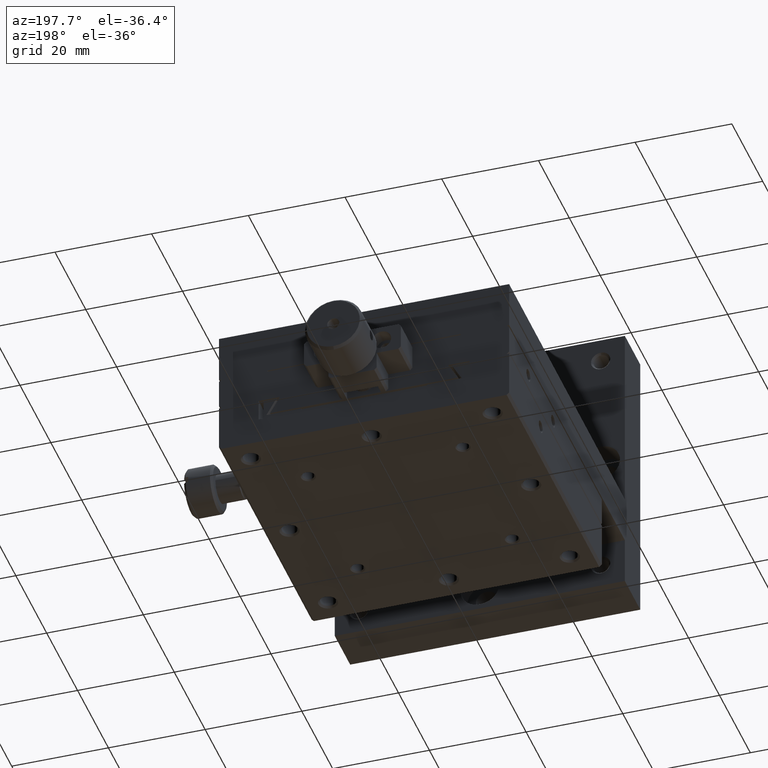
[diagram: clean part render]
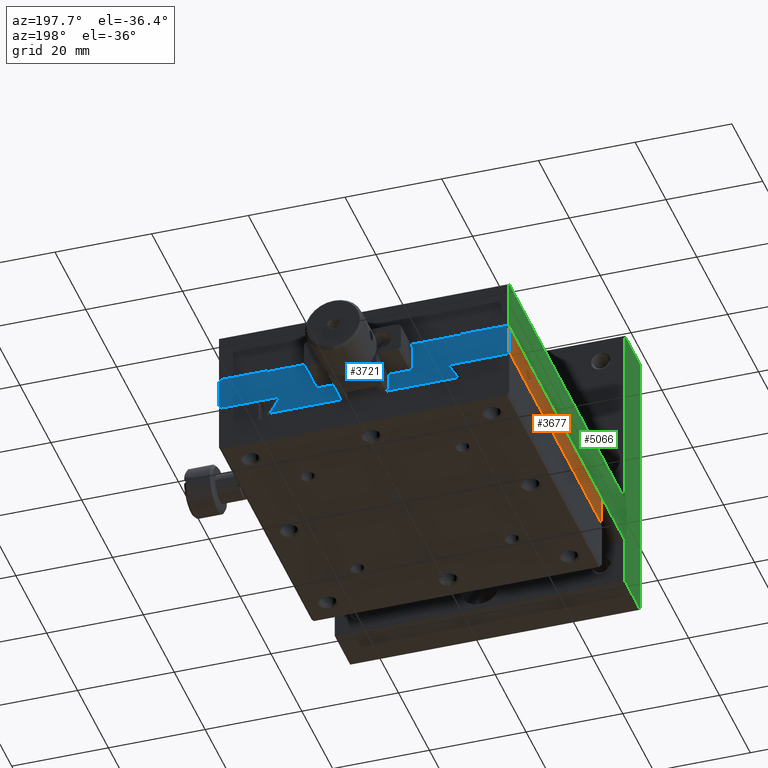
[diagram: same view with three faces highlighted in distinct colors, each labeled with its STEP entity id]
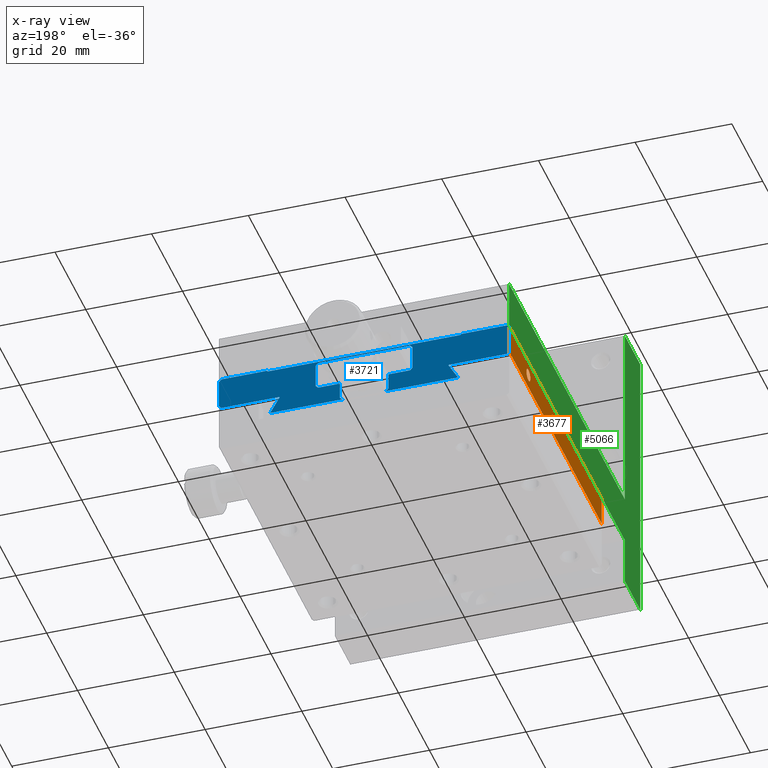
[diagram: x-ray of the same camera — body ghosted, the three highlighted faces saturated]
A machine part, auxiliary view with three faces highlighted in distinct colors.
The next image is the same camera in x-ray (body ghosted, the three faces saturated) — at least one of them is partly hidden behind the body in this view.
Their STEP definitions:

[orange] entity #3677 — the highlighted planar face has unit normal (1, 0, 0).
#59 = LINE ( 'NONE', #2295, #3306 ) ;
#212 = VECTOR ( 'NONE', #1470, 1000.000000000000000 ) ;
#346 = LINE ( 'NONE', #1441, #5934 ) ;
#366 = VERTEX_POINT ( 'NONE', #1045 ) ;
#917 = ORIENTED_EDGE ( 'NONE', *, *, #1976, .T. ) ;
#1016 = CARTESIAN_POINT ( 'NONE',  ( -30.00000000000000000, 84.99999999999998579, -6.500000000000009770 ) ) ;
#1045 = CARTESIAN_POINT ( 'NONE',  ( -30.00000000000000000, 25.00000000000000000, -6.500000000000009770 ) ) ;
#1171 = FACE_OUTER_BOUND ( 'NONE', #4547, .T. ) ;
#1278 = DIRECTION ( 'NONE',  ( 0.000000000000000000, 0.000000000000000000, -1.000000000000000000 ) ) ;
#1363 = DIRECTION ( 'NONE',  ( -1.000000000000000000, 4.592434781932380299E-17, 0.000000000000000000 ) ) ;
#1378 = DIRECTION ( 'NONE',  ( 0.000000000000000000, 0.000000000000000000, 1.000000000000000000 ) ) ;
#1441 = CARTESIAN_POINT ( 'NONE',  ( -30.00000000000000000, 25.00000000000000000, 0.000000000000000000 ) ) ;
#1470 = DIRECTION ( 'NONE',  ( 0.000000000000000000, -0.000000000000000000, 1.000000000000000000 ) ) ;
#1508 = LINE ( 'NONE', #2700, #212 ) ;
#1637 = CARTESIAN_POINT ( 'NONE',  ( -30.00000000000000000, 55.25000000000000000, -3.500000000000000000 ) ) ;
#1857 = ORIENTED_EDGE ( 'NONE', *, *, #3238, .F. ) ;
#1925 = EDGE_CURVE ( 'NONE', #4068, #4279, #1508, .T. ) ;
#1976 = EDGE_CURVE ( 'NONE', #366, #6470, #346, .T. ) ;
#2270 = CARTESIAN_POINT ( 'NONE',  ( -30.00000000000000000, 25.00000000000000000, -0.5000000000000140998 ) ) ;
#2290 = CARTESIAN_POINT ( 'NONE',  ( -30.00000000000000000, 84.99999999999998579, -0.5000000000000143219 ) ) ;
#2295 = CARTESIAN_POINT ( 'NONE',  ( -30.00000000000000000, 84.99999999999998579, -6.500000000000009770 ) ) ;
#2362 = AXIS2_PLACEMENT_3D ( 'NONE', #4276, #1363, #6360 ) ;
#2480 = ORIENTED_EDGE ( 'NONE', *, *, #4710, .F. ) ;
#2493 = CARTESIAN_POINT ( 'NONE',  ( -30.00000000000000000, 84.99999999999998579, -0.5000000000000140998 ) ) ;
#2607 = CARTESIAN_POINT ( 'NONE',  ( -30.00000000000000000, 72.50000000000001421, -3.500000000000000000 ) ) ;
#2700 = CARTESIAN_POINT ( 'NONE',  ( -30.00000000000000000, 84.99999999999998579, 0.000000000000000000 ) ) ;
#2742 = ORIENTED_EDGE ( 'NONE', *, *, #6311, .F. ) ;
#2782 = VERTEX_POINT ( 'NONE', #5082 ) ;
#3238 = EDGE_CURVE ( 'NONE', #4279, #6470, #3936, .T. ) ;
#3306 = VECTOR ( 'NONE', #4024, 1000.000000000000000 ) ;
#3428 = FACE_BOUND ( 'NONE', #4550, .T. ) ;
#3455 = EDGE_LOOP ( 'NONE', ( #2480 ) ) ;
#3677 = ADVANCED_FACE ( 'NONE', ( #1171, #3428, #5642 ), #3817, .F. ) ;
#3739 = DIRECTION ( 'NONE',  ( -1.000000000000000000, 0.000000000000000000, 0.000000000000000000 ) ) ;
#3817 = PLANE ( 'NONE',  #4447 ) ;
#3936 = LINE ( 'NONE', #2290, #5480 ) ;
#4024 = DIRECTION ( 'NONE',  ( -0.000000000000000000, 1.000000000000000000, 0.000000000000000000 ) ) ;
#4068 = VERTEX_POINT ( 'NONE', #4909 ) ;
#4075 = DIRECTION ( 'NONE',  ( 1.000000000000000000, 0.000000000000000000, 0.000000000000000000 ) ) ;
#4156 = ORIENTED_EDGE ( 'NONE', *, *, #1925, .F. ) ;
#4199 = DIRECTION ( 'NONE',  ( 0.000000000000000000, -0.000000000000000000, 1.000000000000000000 ) ) ;
#4276 = CARTESIAN_POINT ( 'NONE',  ( -30.00000000000000000, 56.50000000000000000, -3.500000000000000000 ) ) ;
#4279 = VERTEX_POINT ( 'NONE', #2493 ) ;
#4447 = AXIS2_PLACEMENT_3D ( 'NONE', #1016, #4075, #1278 ) ;
#4547 = EDGE_LOOP ( 'NONE', ( #1857, #4156, #6379, #917 ) ) ;
#4550 = EDGE_LOOP ( 'NONE', ( #2742 ) ) ;
#4629 = EDGE_CURVE ( 'NONE', #366, #4068, #59, .T. ) ;
#4710 = EDGE_CURVE ( 'NONE', #5525, #5525, #5275, .T. ) ;
#4909 = CARTESIAN_POINT ( 'NONE',  ( -30.00000000000000000, 84.99999999999998579, -6.500000000000009770 ) ) ;
#4949 = AXIS2_PLACEMENT_3D ( 'NONE', #2607, #3739, #1378 ) ;
#5074 = DIRECTION ( 'NONE',  ( 0.000000000000000000, -1.000000000000000000, -0.000000000000000000 ) ) ;
#5082 = CARTESIAN_POINT ( 'NONE',  ( -30.00000000000000000, 72.50000000000001421, -2.250000000000000444 ) ) ;
#5181 = CIRCLE ( 'NONE', #4949, 1.249999999999999778 ) ;
#5275 = CIRCLE ( 'NONE', #2362, 1.250000000000001110 ) ;
#5480 = VECTOR ( 'NONE', #5074, 1000.000000000000000 ) ;
#5525 = VERTEX_POINT ( 'NONE', #1637 ) ;
#5642 = FACE_BOUND ( 'NONE', #3455, .T. ) ;
#5934 = VECTOR ( 'NONE', #4199, 1000.000000000000000 ) ;
#6311 = EDGE_CURVE ( 'NONE', #2782, #2782, #5181, .T. ) ;
#6360 = DIRECTION ( 'NONE',  ( 0.000000000000000000, -1.000000000000000000, 0.000000000000000000 ) ) ;
#6379 = ORIENTED_EDGE ( 'NONE', *, *, #4629, .F. ) ;
#6470 = VERTEX_POINT ( 'NONE', #2270 ) ;

[blue] entity #3721 — the highlighted planar face has unit normal (0, 1, 0).
#89 = VECTOR ( 'NONE', #4937, 1000.000000000000000 ) ;
#97 = LINE ( 'NONE', #2332, #3603 ) ;
#117 = VECTOR ( 'NONE', #3249, 1000.000000000000000 ) ;
#173 = EDGE_CURVE ( 'NONE', #6103, #5886, #6714, .T. ) ;
#212 = VECTOR ( 'NONE', #1470, 1000.000000000000000 ) ;
#266 = VERTEX_POINT ( 'NONE', #5322 ) ;
#388 = CARTESIAN_POINT ( 'NONE',  ( -20.00000000000000000, 84.99999999999998579, 0.000000000000000000 ) ) ;
#391 = CARTESIAN_POINT ( 'NONE',  ( -10.00000000000000000, 84.99999999999998579, -1.000000000000000000 ) ) ;
#403 = VERTEX_POINT ( 'NONE', #2127 ) ;
#436 = CARTESIAN_POINT ( 'NONE',  ( 20.00000000000000000, 84.99999999999998579, -0.2000000000000169975 ) ) ;
#516 = CARTESIAN_POINT ( 'NONE',  ( 10.00000000000000000, 84.99999999999998579, -6.000000000000000000 ) ) ;
#517 = ORIENTED_EDGE ( 'NONE', *, *, #6037, .T. ) ;
#547 = VECTOR ( 'NONE', #3228, 1000.000000000000000 ) ;
#554 = CARTESIAN_POINT ( 'NONE',  ( 5.000000000000000000, 84.99999999999998579, -9.999999999999989342 ) ) ;
#744 = EDGE_CURVE ( 'NONE', #3240, #1576, #5499, .T. ) ;
#760 = CARTESIAN_POINT ( 'NONE',  ( 9.500000000000000000, 84.99999999999998579, -0.5000000000000000000 ) ) ;
#766 = LINE ( 'NONE', #5720, #3283 ) ;
#774 = DIRECTION ( 'NONE',  ( 1.000000000000000000, 0.000000000000000000, -0.000000000000000000 ) ) ;
#855 = EDGE_CURVE ( 'NONE', #2524, #1131, #1284, .T. ) ;
#886 = EDGE_CURVE ( 'NONE', #1503, #4741, #5178, .T. ) ;
#887 = VECTOR ( 'NONE', #5536, 1000.000000000000000 ) ;
#904 = CARTESIAN_POINT ( 'NONE',  ( -29.50000000000000000, 84.99999999999998579, -7.000000000000010658 ) ) ;
#910 = VECTOR ( 'NONE', #5280, 1000.000000000000000 ) ;
#982 = EDGE_CURVE ( 'NONE', #3386, #3233, #4264, .T. ) ;
#1009 = ORIENTED_EDGE ( 'NONE', *, *, #1925, .T. ) ;
#1042 = LINE ( 'NONE', #2194, #2230 ) ;
#1131 = VERTEX_POINT ( 'NONE', #1572 ) ;
#1206 = CARTESIAN_POINT ( 'NONE',  ( 5.000000000000000000, 84.99999999999998579, -9.999999999999989342 ) ) ;
#1224 = CARTESIAN_POINT ( 'NONE',  ( 4.499999999999972466, 84.99999999999998579, -10.49999999999999822 ) ) ;
#1230 = CARTESIAN_POINT ( 'NONE',  ( 0.000000000000000000, 84.99999999999998579, -0.5000000000000000000 ) ) ;
#1251 = DIRECTION ( 'NONE',  ( -1.000000000000000000, -0.000000000000000000, 0.000000000000000000 ) ) ;
#1284 = LINE ( 'NONE', #2470, #4651 ) ;
#1332 = CARTESIAN_POINT ( 'NONE',  ( -17.42271428571429581, 84.99999999999998579, -7.000000000000011546 ) ) ;
#1356 = VERTEX_POINT ( 'NONE', #1206 ) ;
#1370 = CARTESIAN_POINT ( 'NONE',  ( -5.000000000000000000, 84.99999999999998579, 0.000000000000000000 ) ) ;
#1380 = EDGE_CURVE ( 'NONE', #5919, #6103, #6942, .T. ) ;
#1401 = VECTOR ( 'NONE', #5243, 1000.000000000000000 ) ;
#1426 = EDGE_CURVE ( 'NONE', #4279, #3501, #5300, .T. ) ;
#1440 = DIRECTION ( 'NONE',  ( -1.000000000000000000, -0.000000000000000000, 0.000000000000000000 ) ) ;
#1463 = CARTESIAN_POINT ( 'NONE',  ( -9.500000000000000000, 84.99999999999998579, -0.5000000000000001110 ) ) ;
#1465 = EDGE_CURVE ( 'NONE', #6212, #4732, #5474, .T. ) ;
#1470 = DIRECTION ( 'NONE',  ( 0.000000000000000000, -0.000000000000000000, 1.000000000000000000 ) ) ;
#1503 = VERTEX_POINT ( 'NONE', #5952 ) ;
#1508 = LINE ( 'NONE', #2700, #212 ) ;
#1569 = EDGE_CURVE ( 'NONE', #2429, #266, #3697, .T. ) ;
#1572 = CARTESIAN_POINT ( 'NONE',  ( 30.00000000000000000, 84.99999999999998579, -6.500000000000030198 ) ) ;
#1573 = CARTESIAN_POINT ( 'NONE',  ( 20.00000000000000000, 84.99999999999998579, -1.420500002347057884E-14 ) ) ;
#1576 = VERTEX_POINT ( 'NONE', #4833 ) ;
#1632 = DIRECTION ( 'NONE',  ( 1.000000000000000000, 0.000000000000000000, -0.000000000000000000 ) ) ;
#1694 = EDGE_CURVE ( 'NONE', #6281, #4068, #97, .T. ) ;
#1710 = VECTOR ( 'NONE', #4762, 1000.000000000000000 ) ;
#1771 = LINE ( 'NONE', #554, #5605 ) ;
#1787 = VECTOR ( 'NONE', #2825, 1000.000000000000000 ) ;
#1810 = CARTESIAN_POINT ( 'NONE',  ( 10.00000000000000000, 84.99999999999998579, -0.9999999999999997780 ) ) ;
#1910 = FACE_OUTER_BOUND ( 'NONE', #3970, .T. ) ;
#1915 = CARTESIAN_POINT ( 'NONE',  ( -10.00000000000000000, 84.99999999999998579, -1.000000000000000000 ) ) ;
#1924 = CARTESIAN_POINT ( 'NONE',  ( 9.500000000000000000, 84.99999999999998579, -0.5000000000000000000 ) ) ;
#1925 = EDGE_CURVE ( 'NONE', #4068, #4279, #1508, .T. ) ;
#1940 = ORIENTED_EDGE ( 'NONE', *, *, #7189, .T. ) ;
#1982 = CARTESIAN_POINT ( 'NONE',  ( 29.50000000000000355, 84.99999999999998579, -1.421085471520200056E-14 ) ) ;
#2014 = EDGE_CURVE ( 'NONE', #1131, #5557, #4275, .T. ) ;
#2020 = VECTOR ( 'NONE', #2167, 1000.000000000000000 ) ;
#2099 = ORIENTED_EDGE ( 'NONE', *, *, #173, .T. ) ;
#2127 = CARTESIAN_POINT ( 'NONE',  ( 20.00000000000000000, 84.99999999999998579, -0.2000000000000169975 ) ) ;
#2167 = DIRECTION ( 'NONE',  ( -0.000000000000000000, -0.000000000000000000, 1.000000000000000000 ) ) ;
#2194 = CARTESIAN_POINT ( 'NONE',  ( 0.000000000000000000, 84.99999999999998579, -6.500000000000000888 ) ) ;
#2230 = VECTOR ( 'NONE', #1632, 1000.000000000000000 ) ;
#2260 = VECTOR ( 'NONE', #4287, 1000.000000000000000 ) ;
#2322 = EDGE_CURVE ( 'NONE', #4766, #6281, #6523, .T. ) ;
#2332 = CARTESIAN_POINT ( 'NONE',  ( -29.50000000000000355, 84.99999999999998579, -7.000000000000009770 ) ) ;
#2343 = DIRECTION ( 'NONE',  ( -1.000000000000000000, -0.000000000000000000, 0.000000000000000000 ) ) ;
#2399 = CARTESIAN_POINT ( 'NONE',  ( 0.000000000000000000, 84.99999999999998579, -10.50000000000000000 ) ) ;
#2429 = VERTEX_POINT ( 'NONE', #1573 ) ;
#2446 = CARTESIAN_POINT ( 'NONE',  ( 10.00000000000000000, 84.99999999999998579, 0.000000000000000000 ) ) ;
#2470 = CARTESIAN_POINT ( 'NONE',  ( 30.00000000000000000, 84.99999999999998579, 0.000000000000000000 ) ) ;
#2493 = CARTESIAN_POINT ( 'NONE',  ( -30.00000000000000000, 84.99999999999998579, -0.5000000000000140998 ) ) ;
#2524 = VERTEX_POINT ( 'NONE', #3534 ) ;
#2525 = ORIENTED_EDGE ( 'NONE', *, *, #4721, .T. ) ;
#2541 = DIRECTION ( 'NONE',  ( -0.7071067811865480168, 0.000000000000000000, -0.7071067811865470176 ) ) ;
#2631 = CARTESIAN_POINT ( 'NONE',  ( -9.500000000000000000, 84.99999999999998579, -6.500000000000000888 ) ) ;
#2667 = VECTOR ( 'NONE', #2876, 1000.000000000000000 ) ;
#2675 = CARTESIAN_POINT ( 'NONE',  ( 5.000000000000000000, 84.99999999999998579, -6.500000000000000888 ) ) ;
#2700 = CARTESIAN_POINT ( 'NONE',  ( -30.00000000000000000, 84.99999999999998579, 0.000000000000000000 ) ) ;
#2723 = ORIENTED_EDGE ( 'NONE', *, *, #3424, .T. ) ;
#2726 = CARTESIAN_POINT ( 'NONE',  ( -5.000000000000000000, 84.99999999999998579, -6.500000000000000888 ) ) ;
#2756 = LINE ( 'NONE', #4976, #1787 ) ;
#2796 = VECTOR ( 'NONE', #3691, 1000.000000000000000 ) ;
#2825 = DIRECTION ( 'NONE',  ( -1.000000000000000000, -0.000000000000000000, 0.000000000000000000 ) ) ;
#2859 = LINE ( 'NONE', #6169, #5504 ) ;
#2876 = DIRECTION ( 'NONE',  ( 0.7071067811865450192, -0.000000000000000000, 0.7071067811865500152 ) ) ;
#2884 = CARTESIAN_POINT ( 'NONE',  ( 29.50000000000000355, 84.99999999999998579, -7.000000000000030198 ) ) ;
#2942 = LINE ( 'NONE', #1230, #4110 ) ;
#2959 = LINE ( 'NONE', #760, #1401 ) ;
#3039 = LINE ( 'NONE', #6499, #7146 ) ;
#3069 = DIRECTION ( 'NONE',  ( -0.000000000000000000, 0.000000000000000000, -1.000000000000000000 ) ) ;
#3090 = CARTESIAN_POINT ( 'NONE',  ( -20.00000000000000000, 84.99999999999998579, -1.420890315129152665E-14 ) ) ;
#3201 = ORIENTED_EDGE ( 'NONE', *, *, #6210, .T. ) ;
#3207 = EDGE_CURVE ( 'NONE', #4548, #1356, #1771, .T. ) ;
#3211 = VECTOR ( 'NONE', #3670, 1000.000000000000000 ) ;
#3228 = DIRECTION ( 'NONE',  ( -0.000000000000000000, 0.000000000000000000, -1.000000000000000000 ) ) ;
#3233 = VERTEX_POINT ( 'NONE', #391 ) ;
#3240 = VERTEX_POINT ( 'NONE', #2675 ) ;
#3249 = DIRECTION ( 'NONE',  ( 0.000000000000000000, -0.000000000000000000, 1.000000000000000000 ) ) ;
#3283 = VECTOR ( 'NONE', #3069, 1000.000000000000000 ) ;
#3296 = EDGE_CURVE ( 'NONE', #3233, #1503, #766, .T. ) ;
#3340 = VERTEX_POINT ( 'NONE', #1810 ) ;
#3370 = EDGE_CURVE ( 'NONE', #6222, #4766, #4639, .T. ) ;
#3386 = VERTEX_POINT ( 'NONE', #1463 ) ;
#3424 = EDGE_CURVE ( 'NONE', #1356, #3240, #5972, .T. ) ;
#3458 = LINE ( 'NONE', #4735, #2260 ) ;
#3501 = VERTEX_POINT ( 'NONE', #7108 ) ;
#3503 = DIRECTION ( 'NONE',  ( -0.000000000000000000, 0.000000000000000000, -1.000000000000000000 ) ) ;
#3515 = DIRECTION ( 'NONE',  ( 0.000000000000000000, -0.000000000000000000, 1.000000000000000000 ) ) ;
#3534 = CARTESIAN_POINT ( 'NONE',  ( 30.00000000000000000, 84.99999999999998579, -0.5000000000000139888 ) ) ;
#3556 = ORIENTED_EDGE ( 'NONE', *, *, #3207, .T. ) ;
#3581 = ORIENTED_EDGE ( 'NONE', *, *, #855, .T. ) ;
#3603 = VECTOR ( 'NONE', #6718, 1000.000000000000114 ) ;
#3646 = CARTESIAN_POINT ( 'NONE',  ( 0.000000000000000000, 84.99999999999998579, -7.000000000000009770 ) ) ;
#3670 = DIRECTION ( 'NONE',  ( 0.7071067811865450192, -0.000000000000000000, -0.7071067811865500152 ) ) ;
#3691 = DIRECTION ( 'NONE',  ( -0.7071067811865450192, -0.000000000000000000, -0.7071067811865500152 ) ) ;
#3697 = LINE ( 'NONE', #4281, #89 ) ;
#3701 = ORIENTED_EDGE ( 'NONE', *, *, #3370, .T. ) ;
#3721 = ADVANCED_FACE ( 'NONE', ( #1910 ), #4632, .T. ) ;
#3762 = VECTOR ( 'NONE', #3515, 1000.000000000000000 ) ;
#3827 = VECTOR ( 'NONE', #4052, 1000.000000000000000 ) ;
#3829 = ORIENTED_EDGE ( 'NONE', *, *, #4568, .T. ) ;
#3905 = ORIENTED_EDGE ( 'NONE', *, *, #1465, .T. ) ;
#3932 = CARTESIAN_POINT ( 'NONE',  ( 0.000000000000000000, 84.99999999999998579, -6.500000000000000888 ) ) ;
#3941 = EDGE_CURVE ( 'NONE', #4741, #5919, #1042, .T. ) ;
#3964 = LINE ( 'NONE', #436, #2020 ) ;
#3970 = EDGE_LOOP ( 'NONE', ( #5193, #6176, #2099, #6706, #3701, #5098, #6539, #1009, #6324, #2525, #3905, #3201, #517, #5609, #6849, #3581, #5658, #1940, #4872, #4174, #3556, #2723, #6939, #5392, #3829, #5949, #6518, #5588, #6564, #5975 ) ) ;
#4017 = DIRECTION ( 'NONE',  ( 0.7071067811865470176, 0.000000000000000000, 0.7071067811865480168 ) ) ;
#4052 = DIRECTION ( 'NONE',  ( 0.7071067811865470176, 0.000000000000000000, -0.7071067811865480168 ) ) ;
#4068 = VERTEX_POINT ( 'NONE', #4909 ) ;
#4110 = VECTOR ( 'NONE', #2343, 1000.000000000000000 ) ;
#4113 = DIRECTION ( 'NONE',  ( 0.000000000000000000, 1.000000000000000000, 0.000000000000000000 ) ) ;
#4121 = DIRECTION ( 'NONE',  ( 0.5000508562094885256, 0.000000000000000000, 0.8659960399471566816 ) ) ;
#4157 = EDGE_CURVE ( 'NONE', #7132, #3386, #2942, .T. ) ;
#4169 = CARTESIAN_POINT ( 'NONE',  ( -30.00000000000000000, 84.99999999999998579, -0.5000000000000139888 ) ) ;
#4174 = ORIENTED_EDGE ( 'NONE', *, *, #5004, .T. ) ;
#4178 = LINE ( 'NONE', #1982, #3211 ) ;
#4264 = LINE ( 'NONE', #1915, #5223 ) ;
#4275 = LINE ( 'NONE', #4893, #2796 ) ;
#4279 = VERTEX_POINT ( 'NONE', #2493 ) ;
#4281 = CARTESIAN_POINT ( 'NONE',  ( 0.000000000000000000, 84.99999999999998579, -1.420304845956010177E-14 ) ) ;
#4287 = DIRECTION ( 'NONE',  ( 1.000000000000000000, -0.000000000000000000, 0.000000000000000000 ) ) ;
#4326 = LINE ( 'NONE', #5814, #6351 ) ;
#4548 = VERTEX_POINT ( 'NONE', #1224 ) ;
#4568 = EDGE_CURVE ( 'NONE', #4814, #3340, #6831, .T. ) ;
#4602 = LINE ( 'NONE', #2399, #5746 ) ;
#4623 = EDGE_CURVE ( 'NONE', #7094, #4906, #2859, .T. ) ;
#4632 = PLANE ( 'NONE',  #4689 ) ;
#4639 = LINE ( 'NONE', #6313, #6549 ) ;
#4646 = DIRECTION ( 'NONE',  ( 0.5000508562094906351, 0.000000000000000000, -0.8659960399471554604 ) ) ;
#4651 = VECTOR ( 'NONE', #3503, 1000.000000000000000 ) ;
#4689 = AXIS2_PLACEMENT_3D ( 'NONE', #6815, #4113, #6848 ) ;
#4717 = CARTESIAN_POINT ( 'NONE',  ( 17.42271428571429936, 84.99999999999998579, -7.000000000000030198 ) ) ;
#4721 = EDGE_CURVE ( 'NONE', #3501, #6212, #3039, .T. ) ;
#4732 = VERTEX_POINT ( 'NONE', #4790 ) ;
#4735 = CARTESIAN_POINT ( 'NONE',  ( -20.00000000000000000, 84.99999999999998579, -0.2000000000000169975 ) ) ;
#4741 = VERTEX_POINT ( 'NONE', #2631 ) ;
#4762 = DIRECTION ( 'NONE',  ( -0.000000000000000000, 0.000000000000000000, -1.000000000000000000 ) ) ;
#4766 = VERTEX_POINT ( 'NONE', #1332 ) ;
#4790 = CARTESIAN_POINT ( 'NONE',  ( -20.00000000000000000, 84.99999999999998579, -0.2000000000000169975 ) ) ;
#4814 = VERTEX_POINT ( 'NONE', #516 ) ;
#4833 = CARTESIAN_POINT ( 'NONE',  ( 9.500000000000001776, 84.99999999999998579, -6.500000000000000888 ) ) ;
#4872 = ORIENTED_EDGE ( 'NONE', *, *, #4623, .T. ) ;
#4893 = CARTESIAN_POINT ( 'NONE',  ( 30.00000000000000000, 84.99999999999998579, -6.500000000000030198 ) ) ;
#4906 = VERTEX_POINT ( 'NONE', #6015 ) ;
#4909 = CARTESIAN_POINT ( 'NONE',  ( -30.00000000000000000, 84.99999999999998579, -6.500000000000009770 ) ) ;
#4937 = DIRECTION ( 'NONE',  ( 1.000000000000000000, 0.000000000000000000, -0.000000000000000000 ) ) ;
#4976 = CARTESIAN_POINT ( 'NONE',  ( 0.000000000000000000, 84.99999999999998579, -10.50000000000000000 ) ) ;
#5004 = EDGE_CURVE ( 'NONE', #4906, #4548, #4602, .T. ) ;
#5098 = ORIENTED_EDGE ( 'NONE', *, *, #2322, .T. ) ;
#5178 = LINE ( 'NONE', #5756, #7087 ) ;
#5193 = ORIENTED_EDGE ( 'NONE', *, *, #3941, .T. ) ;
#5223 = VECTOR ( 'NONE', #2541, 1000.000000000000000 ) ;
#5243 = DIRECTION ( 'NONE',  ( -0.7071067811865480168, 0.000000000000000000, 0.7071067811865470176 ) ) ;
#5253 = LINE ( 'NONE', #6357, #6936 ) ;
#5280 = DIRECTION ( 'NONE',  ( -1.000000000000000000, -0.000000000000000000, 0.000000000000000000 ) ) ;
#5300 = LINE ( 'NONE', #4169, #2667 ) ;
#5322 = CARTESIAN_POINT ( 'NONE',  ( 29.50000000000000000, 84.99999999999998579, -1.323470684173183271E-14 ) ) ;
#5392 = ORIENTED_EDGE ( 'NONE', *, *, #6231, .T. ) ;
#5474 = LINE ( 'NONE', #388, #547 ) ;
#5499 = LINE ( 'NONE', #3932, #887 ) ;
#5504 = VECTOR ( 'NONE', #4646, 1000.000000000000114 ) ;
#5536 = DIRECTION ( 'NONE',  ( 1.000000000000000000, 0.000000000000000000, -0.000000000000000000 ) ) ;
#5557 = VERTEX_POINT ( 'NONE', #2884 ) ;
#5588 = ORIENTED_EDGE ( 'NONE', *, *, #982, .T. ) ;
#5605 = VECTOR ( 'NONE', #4017, 1000.000000000000000 ) ;
#5609 = ORIENTED_EDGE ( 'NONE', *, *, #1569, .T. ) ;
#5658 = ORIENTED_EDGE ( 'NONE', *, *, #2014, .T. ) ;
#5720 = CARTESIAN_POINT ( 'NONE',  ( -10.00000000000000000, 84.99999999999998579, 0.000000000000000000 ) ) ;
#5729 = EDGE_CURVE ( 'NONE', #3340, #7132, #2959, .T. ) ;
#5746 = VECTOR ( 'NONE', #1251, 1000.000000000000000 ) ;
#5756 = CARTESIAN_POINT ( 'NONE',  ( -9.500000000000000000, 84.99999999999998579, -6.500000000000000888 ) ) ;
#5814 = CARTESIAN_POINT ( 'NONE',  ( 10.00000000000000000, 84.99999999999998579, -6.000000000000000000 ) ) ;
#5886 = VERTEX_POINT ( 'NONE', #6560 ) ;
#5889 = DIRECTION ( 'NONE',  ( 0.7071067811865474617, 0.000000000000000000, 0.7071067811865474617 ) ) ;
#5919 = VERTEX_POINT ( 'NONE', #2726 ) ;
#5949 = ORIENTED_EDGE ( 'NONE', *, *, #5729, .T. ) ;
#5952 = CARTESIAN_POINT ( 'NONE',  ( -9.999999999999998224, 84.99999999999998579, -6.000000000000000000 ) ) ;
#5972 = LINE ( 'NONE', #6457, #117 ) ;
#5975 = ORIENTED_EDGE ( 'NONE', *, *, #886, .T. ) ;
#6015 = CARTESIAN_POINT ( 'NONE',  ( 19.44371428571430016, 84.99999999999998579, -10.50000000000000178 ) ) ;
#6037 = EDGE_CURVE ( 'NONE', #403, #2429, #3964, .T. ) ;
#6103 = VERTEX_POINT ( 'NONE', #6810 ) ;
#6169 = CARTESIAN_POINT ( 'NONE',  ( 17.42271428571429936, 84.99999999999998579, -7.000000000000030198 ) ) ;
#6176 = ORIENTED_EDGE ( 'NONE', *, *, #1380, .T. ) ;
#6210 = EDGE_CURVE ( 'NONE', #4732, #403, #3458, .T. ) ;
#6212 = VERTEX_POINT ( 'NONE', #3090 ) ;
#6222 = VERTEX_POINT ( 'NONE', #7058 ) ;
#6231 = EDGE_CURVE ( 'NONE', #1576, #4814, #4326, .T. ) ;
#6269 = EDGE_CURVE ( 'NONE', #266, #2524, #4178, .T. ) ;
#6281 = VERTEX_POINT ( 'NONE', #904 ) ;
#6308 = DIRECTION ( 'NONE',  ( 0.7071067811865474617, 0.000000000000000000, -0.7071067811865474617 ) ) ;
#6313 = CARTESIAN_POINT ( 'NONE',  ( -19.44371428571430016, 84.99999999999998579, -10.50000000000000000 ) ) ;
#6324 = ORIENTED_EDGE ( 'NONE', *, *, #1426, .T. ) ;
#6351 = VECTOR ( 'NONE', #5889, 1000.000000000000114 ) ;
#6357 = CARTESIAN_POINT ( 'NONE',  ( 0.000000000000000000, 84.99999999999998579, -7.000000000000030198 ) ) ;
#6366 = EDGE_CURVE ( 'NONE', #5886, #6222, #2756, .T. ) ;
#6457 = CARTESIAN_POINT ( 'NONE',  ( 5.000000000000000000, 84.99999999999998579, 0.000000000000000000 ) ) ;
#6499 = CARTESIAN_POINT ( 'NONE',  ( 0.000000000000000000, 84.99999999999998579, -1.420304845956010177E-14 ) ) ;
#6518 = ORIENTED_EDGE ( 'NONE', *, *, #4157, .T. ) ;
#6523 = LINE ( 'NONE', #3646, #910 ) ;
#6539 = ORIENTED_EDGE ( 'NONE', *, *, #1694, .T. ) ;
#6549 = VECTOR ( 'NONE', #4121, 1000.000000000000227 ) ;
#6560 = CARTESIAN_POINT ( 'NONE',  ( -4.499999999999984901, 84.99999999999998579, -10.50000000000000888 ) ) ;
#6564 = ORIENTED_EDGE ( 'NONE', *, *, #3296, .T. ) ;
#6706 = ORIENTED_EDGE ( 'NONE', *, *, #6366, .T. ) ;
#6714 = LINE ( 'NONE', #6826, #3827 ) ;
#6718 = DIRECTION ( 'NONE',  ( -0.7071067811865460184, -0.000000000000000000, 0.7071067811865489050 ) ) ;
#6810 = CARTESIAN_POINT ( 'NONE',  ( -5.000000000000002665, 84.99999999999998579, -9.999999999999991118 ) ) ;
#6815 = CARTESIAN_POINT ( 'NONE',  ( 0.000000000000000000, 84.99999999999998579, 0.000000000000000000 ) ) ;
#6826 = CARTESIAN_POINT ( 'NONE',  ( -4.500000000000000888, 84.99999999999998579, -10.50000000000000000 ) ) ;
#6831 = LINE ( 'NONE', #2446, #3762 ) ;
#6848 = DIRECTION ( 'NONE',  ( 0.000000000000000000, -0.000000000000000000, 1.000000000000000000 ) ) ;
#6849 = ORIENTED_EDGE ( 'NONE', *, *, #6269, .T. ) ;
#6936 = VECTOR ( 'NONE', #1440, 1000.000000000000000 ) ;
#6939 = ORIENTED_EDGE ( 'NONE', *, *, #744, .T. ) ;
#6942 = LINE ( 'NONE', #1370, #1710 ) ;
#7058 = CARTESIAN_POINT ( 'NONE',  ( -19.44371428571430016, 84.99999999999998579, -10.50000000000000178 ) ) ;
#7087 = VECTOR ( 'NONE', #6308, 1000.000000000000114 ) ;
#7094 = VERTEX_POINT ( 'NONE', #4717 ) ;
#7108 = CARTESIAN_POINT ( 'NONE',  ( -29.50000000000000000, 84.99999999999998579, -1.367645146438389700E-14 ) ) ;
#7132 = VERTEX_POINT ( 'NONE', #1924 ) ;
#7146 = VECTOR ( 'NONE', #774, 1000.000000000000000 ) ;
#7189 = EDGE_CURVE ( 'NONE', #5557, #7094, #5253, .T. ) ;

[green] entity #5066 — the highlighted planar face has unit normal (1, 0, 0).
#207 = VERTEX_POINT ( 'NONE', #4641 ) ;
#220 = LINE ( 'NONE', #6302, #4100 ) ;
#246 = LINE ( 'NONE', #862, #3050 ) ;
#248 = VERTEX_POINT ( 'NONE', #1958 ) ;
#281 = ORIENTED_EDGE ( 'NONE', *, *, #3075, .T. ) ;
#310 = VECTOR ( 'NONE', #513, 1000.000000000000000 ) ;
#476 = ORIENTED_EDGE ( 'NONE', *, *, #3467, .F. ) ;
#513 = DIRECTION ( 'NONE',  ( -0.000000000000000000, -0.000000000000000000, 1.000000000000000000 ) ) ;
#560 = LINE ( 'NONE', #3834, #4888 ) ;
#700 = EDGE_CURVE ( 'NONE', #3407, #207, #6636, .T. ) ;
#749 = EDGE_CURVE ( 'NONE', #248, #1511, #7184, .T. ) ;
#797 = ORIENTED_EDGE ( 'NONE', *, *, #2755, .F. ) ;
#862 = CARTESIAN_POINT ( 'NONE',  ( -30.00000000000000000, 85.00000000000000000, 10.00000000000000000 ) ) ;
#1143 = ORIENTED_EDGE ( 'NONE', *, *, #700, .F. ) ;
#1286 = DIRECTION ( 'NONE',  ( 1.000000000000000000, 0.000000000000000000, 0.000000000000000000 ) ) ;
#1511 = VERTEX_POINT ( 'NONE', #6577 ) ;
#1615 = CARTESIAN_POINT ( 'NONE',  ( -30.00000000000000000, 0.000000000000000000, 0.000000000000000000 ) ) ;
#1650 = EDGE_CURVE ( 'NONE', #207, #5176, #560, .T. ) ;
#1958 = CARTESIAN_POINT ( 'NONE',  ( -30.00000000000000000, 85.00000000000000000, 0.000000000000000000 ) ) ;
#2015 = AXIS2_PLACEMENT_3D ( 'NONE', #2962, #1286, #4016 ) ;
#2197 = DIRECTION ( 'NONE',  ( -0.000000000000000000, 1.000000000000000000, 0.000000000000000000 ) ) ;
#2453 = CARTESIAN_POINT ( 'NONE',  ( -30.00000000000000000, 9.999999999999994671, 10.00000000000000000 ) ) ;
#2494 = DIRECTION ( 'NONE',  ( 0.000000000000000000, 1.000000000000000000, 0.000000000000000000 ) ) ;
#2545 = DIRECTION ( 'NONE',  ( 0.000000000000000000, -1.000000000000000000, -0.000000000000000000 ) ) ;
#2747 = DIRECTION ( 'NONE',  ( -0.000000000000000000, -0.000000000000000000, 1.000000000000000000 ) ) ;
#2755 = EDGE_CURVE ( 'NONE', #3693, #248, #4328, .T. ) ;
#2902 = VECTOR ( 'NONE', #3861, 1000.000000000000000 ) ;
#2962 = CARTESIAN_POINT ( 'NONE',  ( -30.00000000000000000, 0.000000000000000000, 0.000000000000000000 ) ) ;
#2976 = VERTEX_POINT ( 'NONE', #6837 ) ;
#3050 = VECTOR ( 'NONE', #2494, 1000.000000000000000 ) ;
#3075 = EDGE_CURVE ( 'NONE', #3126, #1511, #246, .T. ) ;
#3126 = VERTEX_POINT ( 'NONE', #2453 ) ;
#3273 = CARTESIAN_POINT ( 'NONE',  ( -30.00000000000000000, 0.000000000000000000, 0.000000000000000000 ) ) ;
#3407 = VERTEX_POINT ( 'NONE', #4885 ) ;
#3467 = EDGE_CURVE ( 'NONE', #2976, #3407, #5390, .T. ) ;
#3505 = FACE_OUTER_BOUND ( 'NONE', #6442, .T. ) ;
#3554 = ORIENTED_EDGE ( 'NONE', *, *, #1650, .F. ) ;
#3680 = VECTOR ( 'NONE', #2747, 1000.000000000000000 ) ;
#3685 = EDGE_CURVE ( 'NONE', #3126, #2976, #220, .T. ) ;
#3693 = VERTEX_POINT ( 'NONE', #6341 ) ;
#3751 = CARTESIAN_POINT ( 'NONE',  ( -30.00000000000000000, 0.000000000000000000, 50.00000000000000000 ) ) ;
#3834 = CARTESIAN_POINT ( 'NONE',  ( -30.00000000000000000, 0.000000000000000000, -9.999999999999989342 ) ) ;
#3861 = DIRECTION ( 'NONE',  ( 0.000000000000000000, 0.000000000000000000, -1.000000000000000000 ) ) ;
#4016 = DIRECTION ( 'NONE',  ( 0.000000000000000000, 0.000000000000000000, -1.000000000000000000 ) ) ;
#4100 = VECTOR ( 'NONE', #6881, 1000.000000000000000 ) ;
#4328 = LINE ( 'NONE', #3273, #5016 ) ;
#4461 = DIRECTION ( 'NONE',  ( -0.000000000000000000, 1.000000000000000000, 0.000000000000000000 ) ) ;
#4641 = CARTESIAN_POINT ( 'NONE',  ( -30.00000000000000000, 0.000000000000000000, -9.999999999999991118 ) ) ;
#4745 = CARTESIAN_POINT ( 'NONE',  ( -30.00000000000000000, 10.00000000000000000, -9.999999999999998224 ) ) ;
#4885 = CARTESIAN_POINT ( 'NONE',  ( -30.00000000000000000, 0.000000000000000000, 50.00000000000000000 ) ) ;
#4888 = VECTOR ( 'NONE', #4461, 1000.000000000000000 ) ;
#5016 = VECTOR ( 'NONE', #2197, 1000.000000000000000 ) ;
#5066 = ADVANCED_FACE ( 'NONE', ( #3505 ), #5719, .F. ) ;
#5176 = VERTEX_POINT ( 'NONE', #4745 ) ;
#5386 = ORIENTED_EDGE ( 'NONE', *, *, #749, .F. ) ;
#5390 = LINE ( 'NONE', #3751, #5485 ) ;
#5485 = VECTOR ( 'NONE', #2545, 1000.000000000000000 ) ;
#5719 = PLANE ( 'NONE',  #2015 ) ;
#5722 = ORIENTED_EDGE ( 'NONE', *, *, #3685, .F. ) ;
#6012 = CARTESIAN_POINT ( 'NONE',  ( -30.00000000000000000, 85.00000000000000000, 0.000000000000000000 ) ) ;
#6058 = CARTESIAN_POINT ( 'NONE',  ( -30.00000000000000000, 10.00000000000000000, 0.000000000000000000 ) ) ;
#6302 = CARTESIAN_POINT ( 'NONE',  ( -30.00000000000000000, 9.999999999999989342, 0.000000000000000000 ) ) ;
#6341 = CARTESIAN_POINT ( 'NONE',  ( -30.00000000000000000, 10.00000000000000000, 0.000000000000000000 ) ) ;
#6442 = EDGE_LOOP ( 'NONE', ( #5722, #281, #5386, #797, #6606, #3554, #1143, #476 ) ) ;
#6577 = CARTESIAN_POINT ( 'NONE',  ( -30.00000000000000000, 85.00000000000000000, 10.00000000000000000 ) ) ;
#6606 = ORIENTED_EDGE ( 'NONE', *, *, #6895, .F. ) ;
#6636 = LINE ( 'NONE', #1615, #2902 ) ;
#6683 = LINE ( 'NONE', #6058, #3680 ) ;
#6837 = CARTESIAN_POINT ( 'NONE',  ( -30.00000000000000000, 9.999999999999998224, 50.00000000000000000 ) ) ;
#6881 = DIRECTION ( 'NONE',  ( -0.000000000000000000, -0.000000000000000000, 1.000000000000000000 ) ) ;
#6895 = EDGE_CURVE ( 'NONE', #5176, #3693, #6683, .T. ) ;
#7184 = LINE ( 'NONE', #6012, #310 ) ;